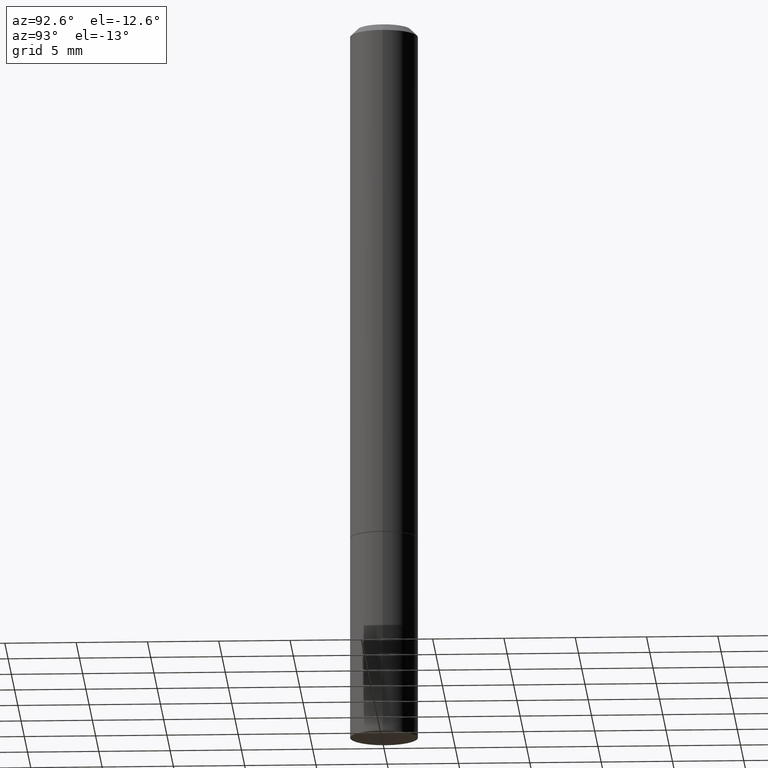
[diagram: clean part render]
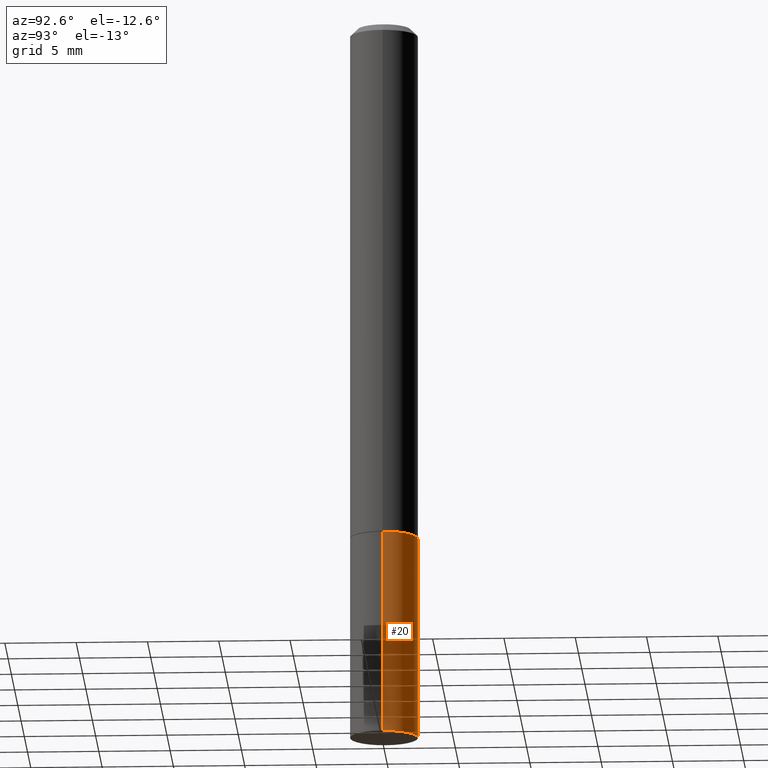
[diagram: same view with one face highlighted and labeled with its STEP entity id]
A machine part, auxiliary view. The second image highlights one B-rep face of the part: STEP entity #20.
In plain terms, the highlighted cylindrical surface (edge-blend (fillet) strip) has radius 2.3813 mm, axis along (-0, 0, 1).
Its self-contained STEP definition (entity closure, byte-faithful):
#3 = LINE ( 'NONE', #251, #40 ) ;
#13 = ORIENTED_EDGE ( 'NONE', *, *, #257, .T. ) ;
#18 = FACE_OUTER_BOUND ( 'NONE', #236, .T. ) ;
#20 = ADVANCED_FACE ( 'NONE', ( #18 ), #215, .T. ) ;
#31 = CARTESIAN_POINT ( 'NONE',  ( 0.09375000000000001388, -7.637615428719378669E-15, -2.000000000000000000 ) ) ;
#32 = DIRECTION ( 'NONE',  ( -2.445468806185136597E-29, 3.491481338843145583E-15, 1.000000000000000000 ) ) ;
#38 = EDGE_CURVE ( 'NONE', #102, #80, #328, .T. ) ;
#40 = VECTOR ( 'NONE', #276, 39.37007874015748143 ) ;
#43 = ORIENTED_EDGE ( 'NONE', *, *, #76, .F. ) ;
#76 = EDGE_CURVE ( 'NONE', #206, #102, #3, .T. ) ;
#80 = VERTEX_POINT ( 'NONE', #199 ) ;
#84 = CIRCLE ( 'NONE', #352, 0.09375000000000001388 ) ;
#102 = VERTEX_POINT ( 'NONE', #203 ) ;
#125 = DIRECTION ( 'NONE',  ( -2.445468806185136877E-29, 3.491481338843145188E-15, 1.000000000000000000 ) ) ;
#137 = CARTESIAN_POINT ( 'NONE',  ( 0.000000000000000000, 0.000000000000000000, 0.000000000000000000 ) ) ;
#177 = VERTEX_POINT ( 'NONE', #345 ) ;
#182 = ORIENTED_EDGE ( 'NONE', *, *, #38, .F. ) ;
#198 = VECTOR ( 'NONE', #125, 39.37007874015748143 ) ;
#199 = CARTESIAN_POINT ( 'NONE',  ( -0.09375000000000001388, -5.334849736361562435E-15, -1.437500000000000000 ) ) ;
#203 = CARTESIAN_POINT ( 'NONE',  ( 0.09375000000000001388, -5.673657175620109057E-15, -1.437500000000000000 ) ) ;
#206 = VERTEX_POINT ( 'NONE', #31 ) ;
#210 = DIRECTION ( 'NONE',  ( -2.445468806185136597E-29, 3.491481338843145583E-15, 1.000000000000000000 ) ) ;
#215 = CYLINDRICAL_SURFACE ( 'NONE', #279, 0.09375000000000001388 ) ;
#217 = CARTESIAN_POINT ( 'NONE',  ( 3.515361408891133858E-29, -5.019004424587021553E-15, -1.437500000000000000 ) ) ;
#234 = DIRECTION ( 'NONE',  ( 1.000000000000000000, -6.982962677686261189E-15, 0.000000000000000000 ) ) ;
#236 = EDGE_LOOP ( 'NONE', ( #322, #13, #182, #43 ) ) ;
#248 = DIRECTION ( 'NONE',  ( -2.445468806185136597E-29, 3.491481338843145583E-15, 1.000000000000000000 ) ) ;
#251 = CARTESIAN_POINT ( 'NONE',  ( 0.09375000000000001388, -6.546527510330875041E-16, 4.571415727308690506E-30 ) ) ;
#254 = EDGE_CURVE ( 'NONE', #206, #177, #84, .T. ) ;
#257 = EDGE_CURVE ( 'NONE', #177, #80, #261, .T. ) ;
#261 = LINE ( 'NONE', #291, #198 ) ;
#276 = DIRECTION ( 'NONE',  ( -2.445468806185136877E-29, 3.491481338843145188E-15, 1.000000000000000000 ) ) ;
#279 = AXIS2_PLACEMENT_3D ( 'NONE', #137, #248, #361 ) ;
#286 = AXIS2_PLACEMENT_3D ( 'NONE', #217, #32, #313 ) ;
#291 = CARTESIAN_POINT ( 'NONE',  ( -0.09375000000000001388, 6.661338147750940229E-16, -4.611501647113973995E-30 ) ) ;
#299 = CARTESIAN_POINT ( 'NONE',  ( 4.890937612370273194E-29, -6.982962677686291165E-15, -2.000000000000000000 ) ) ;
#313 = DIRECTION ( 'NONE',  ( 1.000000000000000000, -6.982962677686261189E-15, 0.000000000000000000 ) ) ;
#322 = ORIENTED_EDGE ( 'NONE', *, *, #254, .T. ) ;
#328 = CIRCLE ( 'NONE', #286, 0.09375000000000001388 ) ;
#345 = CARTESIAN_POINT ( 'NONE',  ( -0.09375000000000001388, -5.334849736361562435E-15, -2.000000000000000000 ) ) ;
#352 = AXIS2_PLACEMENT_3D ( 'NONE', #299, #210, #234 ) ;
#361 = DIRECTION ( 'NONE',  ( 1.000000000000000000, -6.982962677686265922E-15, 4.876176775795935793E-29 ) ) ;